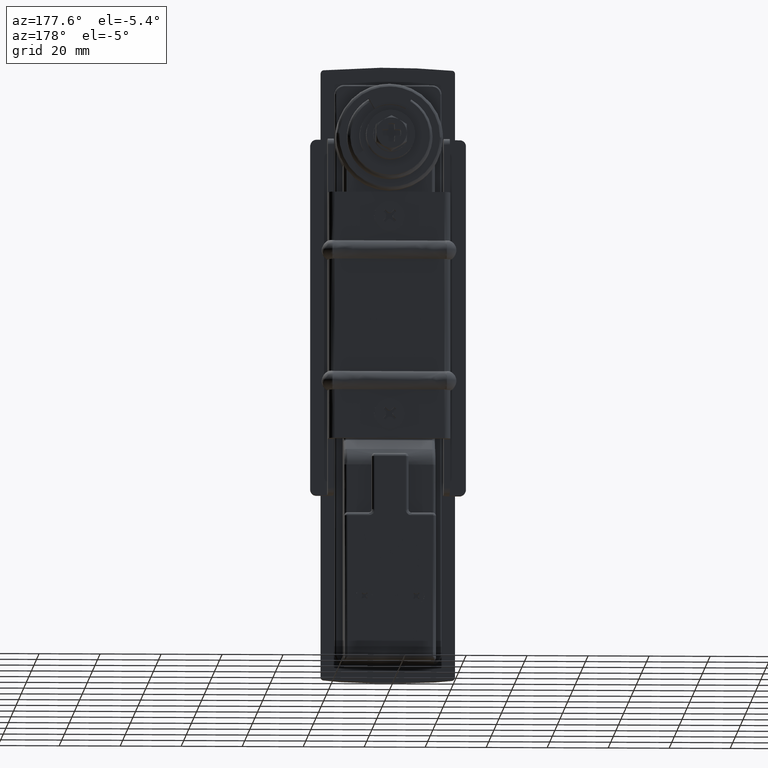
[diagram: clean part render]
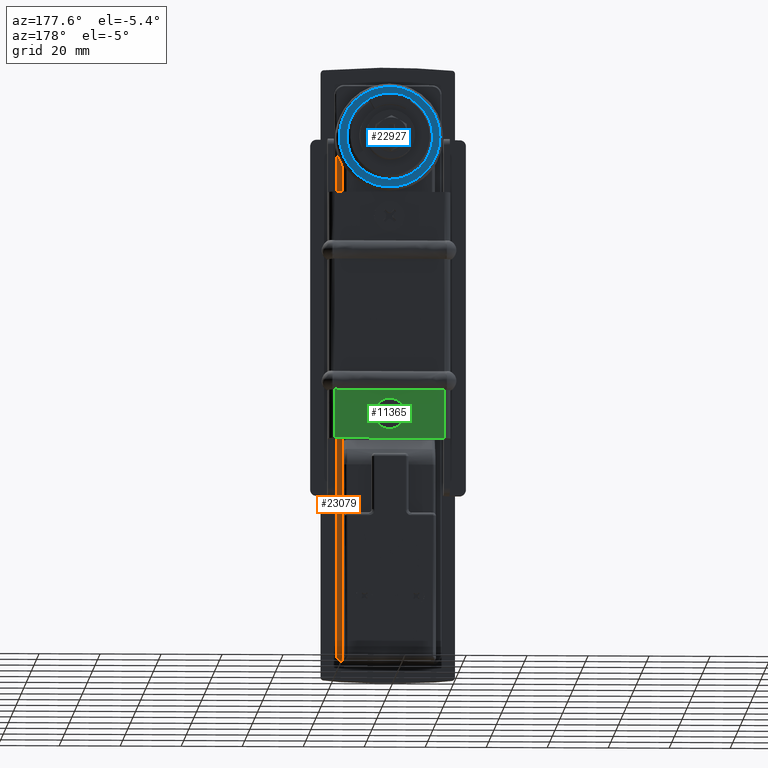
[diagram: same view with three faces highlighted in distinct colors, each labeled with its STEP entity id]
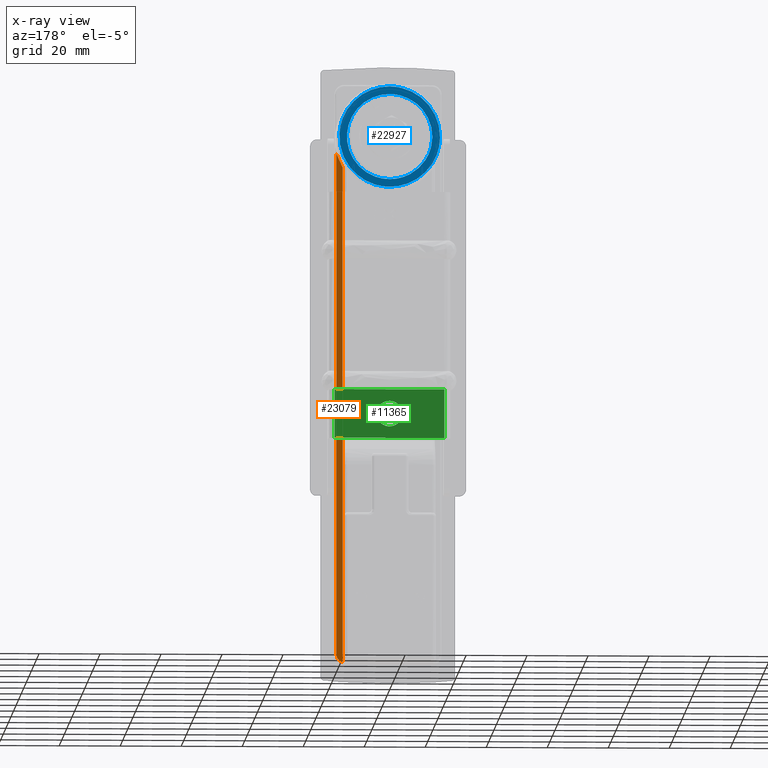
[diagram: x-ray of the same camera — body ghosted, the three highlighted faces saturated]
A machine part, auxiliary view with three faces highlighted in distinct colors.
The next image is the same camera in x-ray (body ghosted, the three faces saturated) — at least one of them is partly hidden behind the body in this view.
Their STEP definitions:

[orange] entity #23079 — the highlighted face is a freeform B-spline surface patch.
#16622=CARTESIAN_POINT('',(8.400000000000000,-16.573631057777249,-5.618251824249430));
#16623=VERTEX_POINT('',#16622);
#16651=CARTESIAN_POINT('',(8.400000000000000,-15.069444444444450,-8.897294203059859));
#16652=VERTEX_POINT('',#16651);
#16653=CARTESIAN_POINT('',(8.400000000000000,-16.573631057777231,-5.618251824249418));
#16654=CARTESIAN_POINT('',(8.400000000000000,-15.991434620352898,-7.335709364222254));
#16655=CARTESIAN_POINT('',(8.400000000000000,-15.069444444444450,-8.897294203059850));
#16663=(BOUNDED_CURVE()B_SPLINE_CURVE(2,(#16653,#16654,#16655),.UNSPECIFIED.,.F.,.U.)CURVE()GEOMETRIC_REPRESENTATION_ITEM()QUASI_UNIFORM_CURVE()RATIONAL_B_SPLINE_CURVE((1.0,0.994673694299193,1.0))REPRESENTATION_ITEM(''));
#16664=EDGE_CURVE('',#16623,#16652,#16663,.T.);
#16998=CARTESIAN_POINT('',(8.400000000000000,-17.0,-4.556314299957810));
#16999=VERTEX_POINT('',#16998);
#17019=CARTESIAN_POINT('',(8.400000000000000,-16.573631057777249,-5.618251824249430));
#17020=CARTESIAN_POINT('',(8.400000000000000,-16.604258199279720,-5.527902911545803));
#17021=CARTESIAN_POINT('',(8.400000000000000,-16.639315351155759,-5.439178686035100));
#17022=CARTESIAN_POINT('',(8.400000000000000,-16.711115303108400,-5.262463939027518));
#17023=CARTESIAN_POINT('',(8.400000000000000,-16.748082460377759,-5.174545236529882));
#17024=CARTESIAN_POINT('',(8.400000000000000,-16.821701274117849,-4.998578143117389));
#17025=CARTESIAN_POINT('',(8.400000000000000,-16.858396890553010,-4.910547822198656));
#17026=CARTESIAN_POINT('',(8.400000000000000,-16.930394050900350,-4.733914138835551));
#17027=CARTESIAN_POINT('',(8.400000000000000,-16.965649898529481,-4.645273315714351));
#17028=CARTESIAN_POINT('',(8.400000000000000,-17.0,-4.556314299957810));
#17029=B_SPLINE_CURVE_WITH_KNOTS('',3,(#17019,#17020,#17021,#17022,#17023,#17024,#17025,#17026,#17027,#17028),.UNSPECIFIED.,.F.,.U.,(4,2,2,2,4),(0.0,0.250000000000000,0.500000000000000,0.750000000000000,1.0),.UNSPECIFIED.);
#17030=EDGE_CURVE('',#16623,#16999,#17029,.T.);
#20716=CARTESIAN_POINT('',(8.400000000000000,-17.0,-169.400000000000010));
#20717=VERTEX_POINT('',#20716);
#20779=CARTESIAN_POINT('',(8.400000000000000,-15.0,-171.849489742782990));
#20780=VERTEX_POINT('',#20779);
#20788=CARTESIAN_POINT('',(8.400000000000000,-17.0,-169.400000000000010));
#20789=CARTESIAN_POINT('',(8.400000000000000,-16.999999999999996,-171.441241452319280));
#20790=CARTESIAN_POINT('',(8.400000000000000,-15.000000000000030,-171.849489742783190));
#20798=(BOUNDED_CURVE()B_SPLINE_CURVE(2,(#20788,#20789,#20790),.UNSPECIFIED.,.F.,.U.)CURVE()GEOMETRIC_REPRESENTATION_ITEM()QUASI_UNIFORM_CURVE()RATIONAL_B_SPLINE_CURVE((1.0,0.774596669241488,1.0))REPRESENTATION_ITEM(''));
#20799=EDGE_CURVE('',#20717,#20780,#20798,.T.);
#20818=CARTESIAN_POINT('',(8.400000000000000,-17.0,-4.556314299957810));
#20819=CARTESIAN_POINT('',(8.400000000000000,-17.0,-169.400000000000010));
#20820=QUASI_UNIFORM_CURVE('',1,(#20818,#20819),.UNSPECIFIED.,.F.,.U.);
#20821=EDGE_CURVE('',#16999,#20717,#20820,.T.);
#21276=CARTESIAN_POINT('',(8.400000000000000,-15.0,-9.151502608861570));
#21277=VERTEX_POINT('',#21276);
#21285=CARTESIAN_POINT('',(8.400000000000000,-15.0,-9.151502608861570));
#21286=CARTESIAN_POINT('',(8.400000000000000,-15.000000000000004,-9.014913017684531));
#21287=CARTESIAN_POINT('',(8.400000000000000,-15.069444444444450,-8.897294203059857));
#21295=(BOUNDED_CURVE()B_SPLINE_CURVE(2,(#21285,#21286,#21287),.UNSPECIFIED.,.F.,.U.)CURVE()GEOMETRIC_REPRESENTATION_ITEM()QUASI_UNIFORM_CURVE()RATIONAL_B_SPLINE_CURVE((1.0,0.964653075232518,1.0))REPRESENTATION_ITEM(''));
#21296=EDGE_CURVE('',#21277,#16652,#21295,.T.);
#22439=CARTESIAN_POINT('',(8.400000000000000,-15.0,-9.151502608861570));
#22440=CARTESIAN_POINT('',(8.400000000000000,-15.0,-171.849489742782990));
#22441=QUASI_UNIFORM_CURVE('',1,(#22439,#22440),.UNSPECIFIED.,.F.,.U.);
#22442=EDGE_CURVE('',#21277,#20780,#22441,.T.);
#23066=CARTESIAN_POINT('',(8.400000000000000,-17.099899996123611,-180.205781961476790));
#23067=CARTESIAN_POINT('',(8.400000000000000,-14.900099950232210,-180.205781961476790));
#23068=CARTESIAN_POINT('',(8.400000000000000,-17.099899996123611,3.799983901606211));
#23069=CARTESIAN_POINT('',(8.400000000000000,-14.900099950232210,3.799983901606211));
#23070=B_SPLINE_SURFACE_WITH_KNOTS('',1,1,((#23066,#23068),(#23067,#23069)),.UNSPECIFIED.,.F.,.F.,.U.,(2,2),(2,2),(0.0,2.199800045891406),(0.0,184.005765863083010),.UNSPECIFIED.);
#23071=ORIENTED_EDGE('',*,*,#16664,.F.);
#23072=ORIENTED_EDGE('',*,*,#17030,.T.);
#23073=ORIENTED_EDGE('',*,*,#20821,.T.);
#23074=ORIENTED_EDGE('',*,*,#20799,.T.);
#23075=ORIENTED_EDGE('',*,*,#22442,.F.);
#23076=ORIENTED_EDGE('',*,*,#21296,.T.);
#23077=EDGE_LOOP('',(#23071,#23072,#23073,#23074,#23075,#23076));
#23078=FACE_OUTER_BOUND('',#23077,.T.);
#23079=ADVANCED_FACE('',(#23078),#23070,.T.);

[blue] entity #22927 — the highlighted face is a freeform B-spline surface patch.
#16158=CARTESIAN_POINT('',(19.399999999999999,13.554066965269721,-3.505320056854174));
#16159=VERTEX_POINT('',#16158);
#16165=CARTESIAN_POINT('',(19.399999999999999,0.0,14.0));
#16166=VERTEX_POINT('',#16165);
#16167=CARTESIAN_POINT('',(19.400000000000006,13.554066965269717,-3.505320056854174));
#16168=CARTESIAN_POINT('',(19.400000000000002,14.000000000000004,-1.781024952111215));
#16169=CARTESIAN_POINT('',(19.399999999999999,14.0,0.0));
#16170=CARTESIAN_POINT('',(19.399999999999999,13.999999999999998,13.999999999999998));
#16171=CARTESIAN_POINT('',(19.399999999999999,0.0,14.0));
#16179=(BOUNDED_CURVE()B_SPLINE_CURVE(2,(#16167,#16168,#16169,#16170,#16171),.UNSPECIFIED.,.F.,.U.)B_SPLINE_CURVE_WITH_KNOTS((3,2,3),(0.207273770287378,0.250000000000000,0.500000000000000),.UNSPECIFIED.)CURVE()GEOMETRIC_REPRESENTATION_ITEM()RATIONAL_B_SPLINE_CURVE((0.916996154473296,0.949943108206828,1.0,0.707106781186547,1.0))REPRESENTATION_ITEM(''));
#16180=EDGE_CURVE('',#16159,#16166,#16179,.T.);
#16182=CARTESIAN_POINT('',(19.399999999999999,0.0,-14.0));
#16183=VERTEX_POINT('',#16182);
#16184=CARTESIAN_POINT('',(19.399999999999999,0.0,14.0));
#16185=CARTESIAN_POINT('',(19.399999999999999,-13.999999999999998,13.999999999999998));
#16186=CARTESIAN_POINT('',(19.399999999999999,-14.0,0.0));
#16187=CARTESIAN_POINT('',(19.399999999999999,-13.999999999999998,-13.999999999999998));
#16188=CARTESIAN_POINT('',(19.399999999999999,0.0,-14.0));
#16196=(BOUNDED_CURVE()B_SPLINE_CURVE(2,(#16184,#16185,#16186,#16187,#16188),.UNSPECIFIED.,.F.,.U.)B_SPLINE_CURVE_WITH_KNOTS((3,2,3),(0.500000000000000,0.750000000000000,1.0),.UNSPECIFIED.)CURVE()GEOMETRIC_REPRESENTATION_ITEM()RATIONAL_B_SPLINE_CURVE((1.0,0.707106781186547,1.0,0.707106781186547,1.0))REPRESENTATION_ITEM(''));
#16197=EDGE_CURVE('',#16166,#16183,#16196,.T.);
#16199=CARTESIAN_POINT('',(19.399999999999999,6.702020386811615,-12.291579342572760));
#16200=VERTEX_POINT('',#16199);
#16201=CARTESIAN_POINT('',(19.399999999999999,0.0,-14.0));
#16202=CARTESIAN_POINT('',(19.399999999999999,3.568758056366066,-14.000000000000005));
#16203=CARTESIAN_POINT('',(19.400000000000002,6.702020386811615,-12.291579342572760));
#16211=(BOUNDED_CURVE()B_SPLINE_CURVE(2,(#16201,#16202,#16203),.UNSPECIFIED.,.F.,.U.)B_SPLINE_CURVE_WITH_KNOTS((3,3),(0.0,0.081517503943722),.UNSPECIFIED.)CURVE()GEOMETRIC_REPRESENTATION_ITEM()RATIONAL_B_SPLINE_CURVE((1.0,0.904496303521140,0.871274390677124))REPRESENTATION_ITEM(''));
#16212=EDGE_CURVE('',#16183,#16200,#16211,.T.);
#16256=CARTESIAN_POINT('',(19.399999999999995,6.702020386811615,-12.291579342572767));
#16257=CARTESIAN_POINT('',(19.400000000000006,12.033603001705933,-9.384517974758678));
#16258=CARTESIAN_POINT('',(19.400000000000006,13.554066965269715,-3.505320056854173));
#16266=(BOUNDED_CURVE()B_SPLINE_CURVE(2,(#16256,#16257,#16258),.UNSPECIFIED.,.F.,.U.)B_SPLINE_CURVE_WITH_KNOTS((3,3),(0.081517503943722,0.207273770287378),.UNSPECIFIED.)CURVE()GEOMETRIC_REPRESENTATION_ITEM()RATIONAL_B_SPLINE_CURVE((0.871274390677124,0.820023266465297,0.916996154473296))REPRESENTATION_ITEM(''));
#16267=EDGE_CURVE('',#16200,#16159,#16266,.T.);
#16756=CARTESIAN_POINT('',(19.399999999999999,-16.459833678879178,1.150598657125741));
#16757=VERTEX_POINT('',#16756);
#16758=CARTESIAN_POINT('',(19.399999999999999,0.0,-16.500000000000000));
#16759=VERTEX_POINT('',#16758);
#16760=CARTESIAN_POINT('',(19.400000000000002,-16.459833678879178,1.150598657125741));
#16761=CARTESIAN_POINT('',(19.399999999999999,-16.500000000000000,0.576000413831372));
#16762=CARTESIAN_POINT('',(19.399999999999999,-16.500000000000000,0.0));
#16763=CARTESIAN_POINT('',(19.400000000000009,-16.499999999999993,-16.499999999999993));
#16764=CARTESIAN_POINT('',(19.399999999999999,0.0,-16.500000000000000));
#16772=(BOUNDED_CURVE()B_SPLINE_CURVE(2,(#16760,#16761,#16762,#16763,#16764),.UNSPECIFIED.,.F.,.U.)B_SPLINE_CURVE_WITH_KNOTS((3,2,3),(0.737833686495603,0.750000000000000,1.0),.UNSPECIFIED.)CURVE()GEOMETRIC_REPRESENTATION_ITEM()RATIONAL_B_SPLINE_CURVE((0.972879876303455,0.985746277106415,1.0,0.707106781186548,1.0))REPRESENTATION_ITEM(''));
#16773=EDGE_CURVE('',#16757,#16759,#16772,.T.);
#16791=CARTESIAN_POINT('',(19.399999999999999,16.498697234815680,-0.207339658172356));
#16792=VERTEX_POINT('',#16791);
#16806=CARTESIAN_POINT('',(19.399999999999999,0.0,-16.500000000000000));
#16807=CARTESIAN_POINT('',(19.400000000000013,16.293946843414361,-16.500000000000000));
#16808=CARTESIAN_POINT('',(19.400000000000002,16.498697234815676,-0.207339658172356));
#16816=(BOUNDED_CURVE()B_SPLINE_CURVE(2,(#16806,#16807,#16808),.UNSPECIFIED.,.F.,.U.)B_SPLINE_CURVE_WITH_KNOTS((3,3),(0.0,0.247784295921120),.UNSPECIFIED.)CURVE()GEOMETRIC_REPRESENTATION_ITEM()RATIONAL_B_SPLINE_CURVE((1.0,0.709702639984952,0.994854295642613))REPRESENTATION_ITEM(''));
#16817=EDGE_CURVE('',#16759,#16792,#16816,.T.);
#16845=CARTESIAN_POINT('',(19.399999999999999,0.0,16.500000000000000));
#16846=VERTEX_POINT('',#16845);
#16847=CARTESIAN_POINT('',(19.399999999999999,0.0,16.500000000000000));
#16848=CARTESIAN_POINT('',(19.399999999999999,-15.386857976353825,16.499999999999993));
#16849=CARTESIAN_POINT('',(19.400000000000002,-16.459833678879178,1.150598657125741));
#16857=(BOUNDED_CURVE()B_SPLINE_CURVE(2,(#16847,#16848,#16849),.UNSPECIFIED.,.F.,.U.)B_SPLINE_CURVE_WITH_KNOTS((3,3),(0.500000000000000,0.737833686495603),.UNSPECIFIED.)CURVE()GEOMETRIC_REPRESENTATION_ITEM()RATIONAL_B_SPLINE_CURVE((1.0,0.721360504080133,0.972879876303455))REPRESENTATION_ITEM(''));
#16858=EDGE_CURVE('',#16846,#16757,#16857,.T.);
#16860=CARTESIAN_POINT('',(19.399999999999995,16.498697234815683,-0.207339658172356));
#16861=CARTESIAN_POINT('',(19.400000000000006,16.499999999999996,-0.103673921894693));
#16862=CARTESIAN_POINT('',(19.399999999999999,16.500000000000000,0.0));
#16863=CARTESIAN_POINT('',(19.400000000000009,16.499999999999993,16.499999999999993));
#16864=CARTESIAN_POINT('',(19.399999999999999,0.0,16.500000000000000));
#16872=(BOUNDED_CURVE()B_SPLINE_CURVE(2,(#16860,#16861,#16862,#16863,#16864),.UNSPECIFIED.,.F.,.U.)B_SPLINE_CURVE_WITH_KNOTS((3,2,3),(0.247784295921120,0.250000000000000,0.500000000000000),.UNSPECIFIED.)CURVE()GEOMETRIC_REPRESENTATION_ITEM()RATIONAL_B_SPLINE_CURVE((0.994854295642614,0.997404141201595,1.0,0.707106781186548,1.0))REPRESENTATION_ITEM(''));
#16873=EDGE_CURVE('',#16792,#16846,#16872,.T.);
#22910=CARTESIAN_POINT('',(19.399999999999999,-18.146308471794189,-18.148349936039590));
#22911=CARTESIAN_POINT('',(19.399999999999999,18.146888958573371,-18.148349936039590));
#22912=CARTESIAN_POINT('',(19.399999999999999,-18.146308471794189,18.148350821168570));
#22913=CARTESIAN_POINT('',(19.399999999999999,18.146888958573371,18.148350821168570));
#22914=B_SPLINE_SURFACE_WITH_KNOTS('',1,1,((#22910,#22912),(#22911,#22913)),.UNSPECIFIED.,.F.,.F.,.U.,(2,2),(2,2),(0.0,36.293197430367563),(0.0,36.296700757208157),.UNSPECIFIED.);
#22915=ORIENTED_EDGE('',*,*,#16817,.T.);
#22916=ORIENTED_EDGE('',*,*,#16873,.T.);
#22917=ORIENTED_EDGE('',*,*,#16858,.T.);
#22918=ORIENTED_EDGE('',*,*,#16773,.T.);
#22919=EDGE_LOOP('',(#22915,#22916,#22917,#22918));
#22920=FACE_OUTER_BOUND('',#22919,.T.);
#22921=ORIENTED_EDGE('',*,*,#16197,.F.);
#22922=ORIENTED_EDGE('',*,*,#16180,.F.);
#22923=ORIENTED_EDGE('',*,*,#16267,.F.);
#22924=ORIENTED_EDGE('',*,*,#16212,.F.);
#22925=EDGE_LOOP('',(#22921,#22922,#22923,#22924));
#22926=FACE_BOUND('',#22925,.T.);
#22927=ADVANCED_FACE('',(#22920,#22926),#22914,.T.);

[green] entity #11365 — the highlighted face is a freeform B-spline surface patch.
#8407=CARTESIAN_POINT('',(18.000000000523610,4.170640010761016,-91.495743791978811));
#8408=VERTEX_POINT('',#8407);
#8414=CARTESIAN_POINT('',(18.0,-3.979971E-015,-86.800000002267197));
#8415=VERTEX_POINT('',#8414);
#8416=CARTESIAN_POINT('',(18.000000000523613,4.170640010761016,-91.495743791978811));
#8417=CARTESIAN_POINT('',(17.999999999999996,4.199999999999996,-91.248741308939913));
#8418=CARTESIAN_POINT('',(18.0,4.199999999999996,-91.000000002267200));
#8419=CARTESIAN_POINT('',(18.000000000000007,4.199999999999996,-86.800000002267197));
#8420=CARTESIAN_POINT('',(18.0,-3.979971E-015,-86.800000002267197));
#8428=(BOUNDED_CURVE()B_SPLINE_CURVE(2,(#8416,#8417,#8418,#8419,#8420),.UNSPECIFIED.,.F.,.U.)B_SPLINE_CURVE_WITH_KNOTS((3,2,3),(0.229562473184057,0.250000000000000,0.500000000000000),.UNSPECIFIED.)CURVE()GEOMETRIC_REPRESENTATION_ITEM()RATIONAL_B_SPLINE_CURVE((0.956026753537961,0.976055947945168,1.0,0.707106781186548,1.0))REPRESENTATION_ITEM(''));
#8429=EDGE_CURVE('',#8408,#8415,#8428,.T.);
#8431=CARTESIAN_POINT('',(18.000000000440590,-4.192166153607285,-90.743596132853270));
#8432=VERTEX_POINT('',#8431);
#8433=CARTESIAN_POINT('',(18.0,-3.979971E-015,-86.800000002267197));
#8434=CARTESIAN_POINT('',(18.0,-3.950965474695296,-86.800000002267183));
#8435=CARTESIAN_POINT('',(18.000000000440590,-4.192166153607285,-90.743596132853270));
#8443=(BOUNDED_CURVE()B_SPLINE_CURVE(2,(#8433,#8434,#8435),.UNSPECIFIED.,.F.,.U.)B_SPLINE_CURVE_WITH_KNOTS((3,3),(0.500000000000000,0.739332961966972),.UNSPECIFIED.)CURVE()GEOMETRIC_REPRESENTATION_ITEM()RATIONAL_B_SPLINE_CURVE((1.0,0.719603993605345,0.976072041083831))REPRESENTATION_ITEM(''));
#8444=EDGE_CURVE('',#8415,#8432,#8443,.T.);
#8478=CARTESIAN_POINT('',(18.0,-3.979971E-015,-95.200000002267188));
#8479=VERTEX_POINT('',#8478);
#8480=CARTESIAN_POINT('',(18.000000000440590,-4.192166153607285,-90.743596132853270));
#8481=CARTESIAN_POINT('',(18.000000000000007,-4.200000000000003,-90.871678393063121));
#8482=CARTESIAN_POINT('',(18.0,-4.200000000000004,-91.000000002267200));
#8483=CARTESIAN_POINT('',(18.000000000000007,-4.200000000000005,-95.200000002267188));
#8484=CARTESIAN_POINT('',(18.0,-3.979971E-015,-95.200000002267188));
#8492=(BOUNDED_CURVE()B_SPLINE_CURVE(2,(#8480,#8481,#8482,#8483,#8484),.UNSPECIFIED.,.F.,.U.)B_SPLINE_CURVE_WITH_KNOTS((3,2,3),(0.739332961966971,0.750000000000000,1.0),.UNSPECIFIED.)CURVE()GEOMETRIC_REPRESENTATION_ITEM()RATIONAL_B_SPLINE_CURVE((0.976072041083829,0.987502787581202,1.0,0.707106781186548,1.0))REPRESENTATION_ITEM(''));
#8493=EDGE_CURVE('',#8432,#8479,#8492,.T.);
#8495=CARTESIAN_POINT('',(18.0,-3.979971E-015,-95.200000002267188));
#8496=CARTESIAN_POINT('',(17.999999999999993,3.730333001625234,-95.200000002267188));
#8497=CARTESIAN_POINT('',(18.000000000523613,4.170640010761015,-91.495743791978811));
#8505=(BOUNDED_CURVE()B_SPLINE_CURVE(2,(#8495,#8496,#8497),.UNSPECIFIED.,.F.,.U.)B_SPLINE_CURVE_WITH_KNOTS((3,3),(0.0,0.229562473184057),.UNSPECIFIED.)CURVE()GEOMETRIC_REPRESENTATION_ITEM()RATIONAL_B_SPLINE_CURVE((1.0,0.731050833241379,0.956026753537961))REPRESENTATION_ITEM(''));
#8506=EDGE_CURVE('',#8479,#8408,#8505,.T.);
#9630=CARTESIAN_POINT('',(18.0,18.000000000000700,-99.0));
#9631=VERTEX_POINT('',#9630);
#9645=CARTESIAN_POINT('',(18.0,-18.000000000000700,-99.0));
#9646=VERTEX_POINT('',#9645);
#9647=CARTESIAN_POINT('',(18.0,18.000000000000700,-99.0));
#9648=CARTESIAN_POINT('',(18.0,-18.000000000000700,-99.0));
#9649=QUASI_UNIFORM_CURVE('',1,(#9647,#9648),.UNSPECIFIED.,.F.,.U.);
#9650=EDGE_CURVE('',#9631,#9646,#9649,.T.);
#10223=CARTESIAN_POINT('',(18.0,-18.0,-83.000000002267200));
#10224=VERTEX_POINT('',#10223);
#10236=CARTESIAN_POINT('',(18.0,18.0,-83.000000002267200));
#10237=VERTEX_POINT('',#10236);
#10238=CARTESIAN_POINT('',(18.0,-18.0,-83.000000002267200));
#10239=CARTESIAN_POINT('',(18.0,18.0,-83.000000002267200));
#10240=QUASI_UNIFORM_CURVE('',1,(#10238,#10239),.UNSPECIFIED.,.F.,.U.);
#10241=EDGE_CURVE('',#10224,#10237,#10240,.T.);
#10960=CARTESIAN_POINT('',(18.0,-18.0,-83.000000002267200));
#10961=CARTESIAN_POINT('',(18.0,-18.000000000000700,-99.0));
#10962=QUASI_UNIFORM_CURVE('',1,(#10960,#10961),.UNSPECIFIED.,.F.,.U.);
#10963=EDGE_CURVE('',#10224,#9646,#10962,.T.);
#10999=CARTESIAN_POINT('',(18.0,18.000000000000700,-99.0));
#11000=CARTESIAN_POINT('',(18.0,18.0,-83.000000002267200));
#11001=QUASI_UNIFORM_CURVE('',1,(#10999,#11000),.UNSPECIFIED.,.F.,.U.);
#11002=EDGE_CURVE('',#9631,#10237,#11001,.T.);
#11348=CARTESIAN_POINT('',(18.0,-19.798199930225788,-82.200800033391559));
#11349=CARTESIAN_POINT('',(18.0,-19.798199930225788,-99.799200398029114));
#11350=CARTESIAN_POINT('',(18.0,19.798200895821029,-82.200800033391559));
#11351=CARTESIAN_POINT('',(18.0,19.798200895821029,-99.799200398029114));
#11352=B_SPLINE_SURFACE_WITH_KNOTS('',1,1,((#11348,#11350),(#11349,#11351)),.UNSPECIFIED.,.F.,.F.,.U.,(2,2),(2,2),(0.0,17.598400364637559),(0.0,39.596400826046818),.UNSPECIFIED.);
#11353=ORIENTED_EDGE('',*,*,#9650,.F.);
#11354=ORIENTED_EDGE('',*,*,#11002,.T.);
#11355=ORIENTED_EDGE('',*,*,#10241,.F.);
#11356=ORIENTED_EDGE('',*,*,#10963,.T.);
#11357=EDGE_LOOP('',(#11353,#11354,#11355,#11356));
#11358=FACE_OUTER_BOUND('',#11357,.T.);
#11359=ORIENTED_EDGE('',*,*,#8444,.F.);
#11360=ORIENTED_EDGE('',*,*,#8429,.F.);
#11361=ORIENTED_EDGE('',*,*,#8506,.F.);
#11362=ORIENTED_EDGE('',*,*,#8493,.F.);
#11363=EDGE_LOOP('',(#11359,#11360,#11361,#11362));
#11364=FACE_BOUND('',#11363,.T.);
#11365=ADVANCED_FACE('',(#11358,#11364),#11352,.T.);